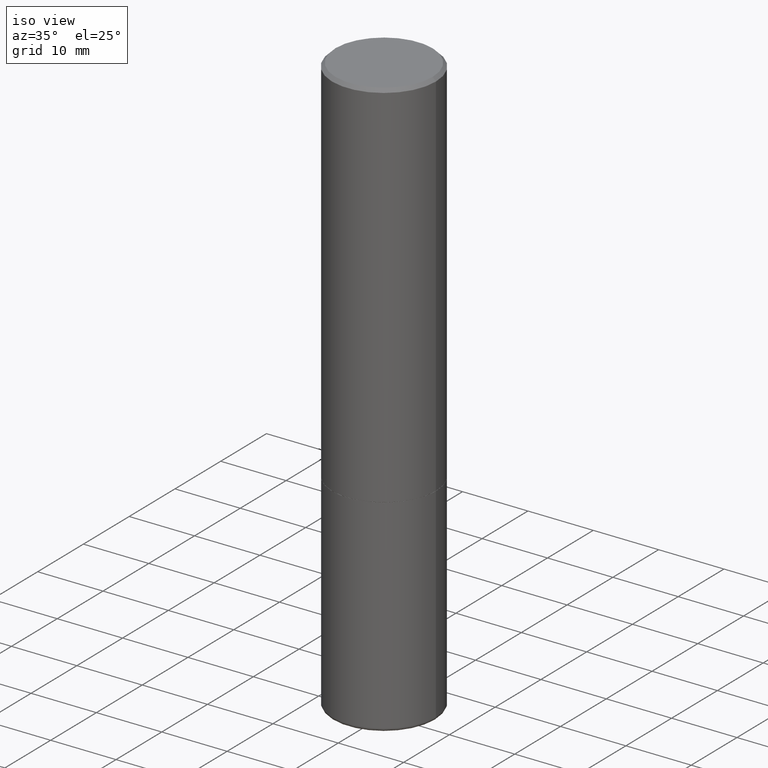
[diagram: clean part render]
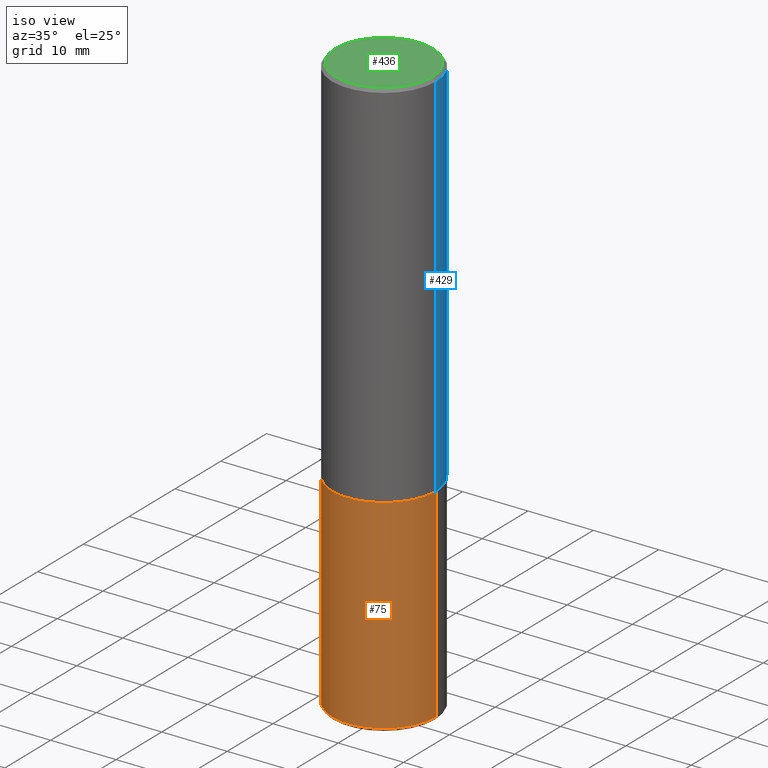
[diagram: same view with three faces highlighted in distinct colors, each labeled with its STEP entity id]
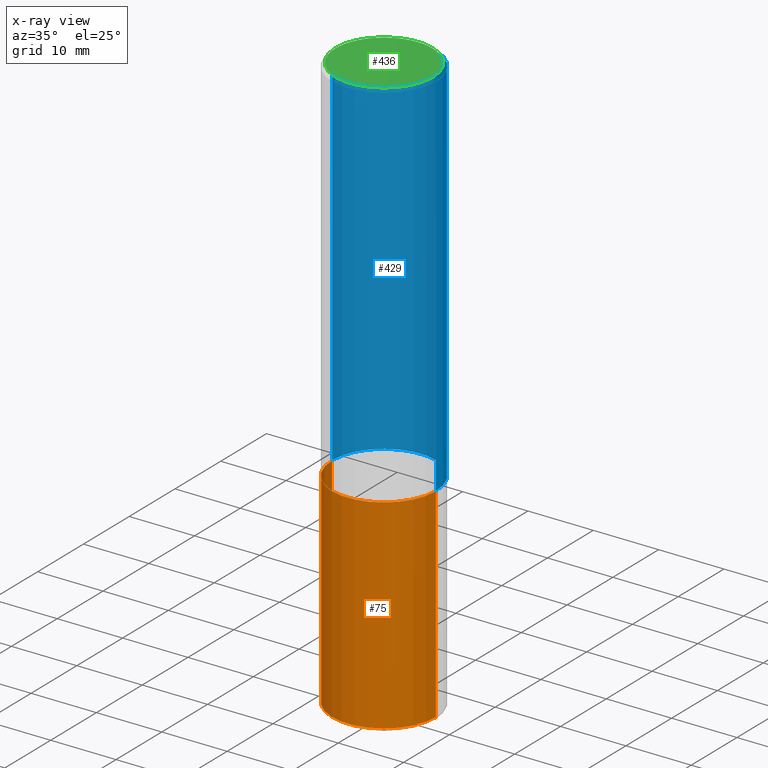
[diagram: x-ray of the same camera — body ghosted, the three highlighted faces saturated]
A machine part, iso view with three faces highlighted in distinct colors.
The next image is the same camera in x-ray (body ghosted, the three faces saturated) — at least one of them is partly hidden behind the body in this view.
Their STEP definitions:

[orange] entity #75 — the highlighted cylindrical surface (partial cylindrical patch) has radius 7.9375 mm, axis along (-0, 0, 1).
#6 = ORIENTED_EDGE ( 'NONE', *, *, #218, .T. ) ;
#8 = DIRECTION ( 'NONE',  ( 1.000000000000000000, -6.982962677686266711E-15, 4.876176775795935232E-29 ) ) ;
#18 = EDGE_CURVE ( 'NONE', #424, #171, #234, .T. ) ;
#75 = ADVANCED_FACE ( 'NONE', ( #278 ), #185, .T. ) ;
#77 = CARTESIAN_POINT ( 'NONE',  ( -0.3124999999999998890, 2.220446049250312292E-15, -1.537167215704657391E-29 ) ) ;
#101 = EDGE_CURVE ( 'NONE', #424, #416, #249, .T. ) ;
#112 = DIRECTION ( 'NONE',  ( -2.445468806185136877E-29, 3.491481338843145188E-15, 1.000000000000000000 ) ) ;
#121 = CARTESIAN_POINT ( 'NONE',  ( 0.3125000000000000000, -1.003800884917403364E-14, -2.249999999999999556 ) ) ;
#123 = ORIENTED_EDGE ( 'NONE', *, *, #142, .F. ) ;
#142 = EDGE_CURVE ( 'NONE', #416, #358, #168, .T. ) ;
#147 = VECTOR ( 'NONE', #112, 39.37007874015748143 ) ;
#167 = ORIENTED_EDGE ( 'NONE', *, *, #18, .T. ) ;
#168 = CIRCLE ( 'NONE', #319, 0.3125000000000000000 ) ;
#171 = VERTEX_POINT ( 'NONE', #245 ) ;
#184 = DIRECTION ( 'NONE',  ( 1.000000000000000000, -6.982962677686265133E-15, 0.000000000000000000 ) ) ;
#185 = CYLINDRICAL_SURFACE ( 'NONE', #221, 0.3124999999999998890 ) ;
#203 = DIRECTION ( 'NONE',  ( -2.445468806185136597E-29, 3.491481338843145583E-15, 1.000000000000000000 ) ) ;
#218 = EDGE_CURVE ( 'NONE', #171, #358, #274, .T. ) ;
#220 = DIRECTION ( 'NONE',  ( -2.445468806185136597E-29, 3.491481338843145583E-15, 1.000000000000000000 ) ) ;
#221 = AXIS2_PLACEMENT_3D ( 'NONE', #309, #220, #8 ) ;
#234 = CIRCLE ( 'NONE', #302, 0.3124999999999997224 ) ;
#239 = CARTESIAN_POINT ( 'NONE',  ( 8.510298474124427942E-29, -1.215045075825074504E-14, -3.480027409304908392 ) ) ;
#245 = CARTESIAN_POINT ( 'NONE',  ( 0.3124999999999997224, -1.433262659502770023E-14, -3.480027409304908392 ) ) ;
#249 = LINE ( 'NONE', #77, #341 ) ;
#252 = DIRECTION ( 'NONE',  ( -2.445468806185136877E-29, 3.491481338843145188E-15, 1.000000000000000000 ) ) ;
#274 = LINE ( 'NONE', #404, #147 ) ;
#278 = FACE_OUTER_BOUND ( 'NONE', #439, .T. ) ;
#302 = AXIS2_PLACEMENT_3D ( 'NONE', #239, #203, #327 ) ;
#307 = DIRECTION ( 'NONE',  ( -2.445468806185136597E-29, 3.491481338843145583E-15, 1.000000000000000000 ) ) ;
#309 = CARTESIAN_POINT ( 'NONE',  ( 0.000000000000000000, 0.000000000000000000, 0.000000000000000000 ) ) ;
#319 = AXIS2_PLACEMENT_3D ( 'NONE', #403, #307, #184 ) ;
#326 = CARTESIAN_POINT ( 'NONE',  ( -0.3125000000000000000, -7.782695836073597873E-15, -2.249999999999999556 ) ) ;
#327 = DIRECTION ( 'NONE',  ( 1.000000000000000000, -6.982962677686269077E-15, 0.000000000000000000 ) ) ;
#341 = VECTOR ( 'NONE', #252, 39.37007874015748143 ) ;
#357 = CARTESIAN_POINT ( 'NONE',  ( -0.3124999999999997224, -7.782695836073599450E-15, -3.480027409304908392 ) ) ;
#358 = VERTEX_POINT ( 'NONE', #121 ) ;
#403 = CARTESIAN_POINT ( 'NONE',  ( 5.502304813916556222E-29, -7.855833012397075293E-15, -2.249999999999999556 ) ) ;
#404 = CARTESIAN_POINT ( 'NONE',  ( 0.3124999999999998890, -2.182175836776957558E-15, 1.523805242436229235E-29 ) ) ;
#416 = VERTEX_POINT ( 'NONE', #326 ) ;
#424 = VERTEX_POINT ( 'NONE', #357 ) ;
#435 = ORIENTED_EDGE ( 'NONE', *, *, #101, .F. ) ;
#439 = EDGE_LOOP ( 'NONE', ( #435, #167, #6, #123 ) ) ;

[blue] entity #429 — the highlighted cylindrical surface (partial cylindrical patch) has radius 7.9375 mm, axis along (-0, 0, 1).
#7 = CARTESIAN_POINT ( 'NONE',  ( -0.3124999999999998890, 2.220446049250312292E-15, -1.537167215704657391E-29 ) ) ;
#14 = VECTOR ( 'NONE', #305, 39.37007874015748143 ) ;
#20 = CARTESIAN_POINT ( 'NONE',  ( 5.499859345110370619E-29, -7.852341531058232286E-15, -2.248999999999999222 ) ) ;
#23 = CIRCLE ( 'NONE', #31, 0.3124999999999998335 ) ;
#28 = VERTEX_POINT ( 'NONE', #143 ) ;
#31 = AXIS2_PLACEMENT_3D ( 'NONE', #47, #79, #339 ) ;
#41 = EDGE_CURVE ( 'NONE', #355, #28, #23, .T. ) ;
#47 = CARTESIAN_POINT ( 'NONE',  ( 4.890937612370276662E-31, -6.982962677686296539E-17, -0.02000000000000001776 ) ) ;
#57 = DIRECTION ( 'NONE',  ( -2.445468806185136597E-29, 3.491481338843145583E-15, 1.000000000000000000 ) ) ;
#66 = DIRECTION ( 'NONE',  ( 1.000000000000000000, -6.982962677686266711E-15, 4.876176775795935232E-29 ) ) ;
#79 = DIRECTION ( 'NONE',  ( -2.445468806185136597E-29, 3.491481338843145583E-15, 1.000000000000000000 ) ) ;
#87 = CIRCLE ( 'NONE', #230, 0.3125000000000000000 ) ;
#93 = VERTEX_POINT ( 'NONE', #337 ) ;
#134 = ORIENTED_EDGE ( 'NONE', *, *, #375, .T. ) ;
#143 = CARTESIAN_POINT ( 'NONE',  ( -0.3124999999999998335, 2.112346210000093866E-15, -0.02000000000000001776 ) ) ;
#148 = CARTESIAN_POINT ( 'NONE',  ( 0.3124999999999998890, -2.182175836776957558E-15, 1.523805242436229235E-29 ) ) ;
#157 = DIRECTION ( 'NONE',  ( 1.000000000000000000, -6.982962677686269077E-15, 0.000000000000000000 ) ) ;
#161 = CARTESIAN_POINT ( 'NONE',  ( 0.3124999999999998335, -2.213735251080465334E-15, -0.02000000000000001776 ) ) ;
#164 = ORIENTED_EDGE ( 'NONE', *, *, #186, .T. ) ;
#176 = VECTOR ( 'NONE', #407, 39.37007874015748143 ) ;
#180 = LINE ( 'NONE', #7, #14 ) ;
#186 = EDGE_CURVE ( 'NONE', #397, #28, #180, .T. ) ;
#202 = ORIENTED_EDGE ( 'NONE', *, *, #41, .F. ) ;
#223 = EDGE_CURVE ( 'NONE', #93, #355, #248, .T. ) ;
#230 = AXIS2_PLACEMENT_3D ( 'NONE', #20, #57, #157 ) ;
#233 = CYLINDRICAL_SURFACE ( 'NONE', #419, 0.3124999999999998890 ) ;
#235 = ORIENTED_EDGE ( 'NONE', *, *, #223, .F. ) ;
#248 = LINE ( 'NONE', #148, #176 ) ;
#305 = DIRECTION ( 'NONE',  ( -2.445468806185136877E-29, 3.491481338843145188E-15, 1.000000000000000000 ) ) ;
#320 = CARTESIAN_POINT ( 'NONE',  ( -0.3125000000000000000, -1.740639529667232739E-15, -2.248999999999999222 ) ) ;
#328 = FACE_OUTER_BOUND ( 'NONE', #393, .T. ) ;
#331 = CARTESIAN_POINT ( 'NONE',  ( 0.000000000000000000, 0.000000000000000000, 0.000000000000000000 ) ) ;
#337 = CARTESIAN_POINT ( 'NONE',  ( 0.3125000000000000000, -1.003451736783519063E-14, -2.248999999999999222 ) ) ;
#339 = DIRECTION ( 'NONE',  ( 1.000000000000000000, -6.982962677686266711E-15, 0.000000000000000000 ) ) ;
#355 = VERTEX_POINT ( 'NONE', #161 ) ;
#363 = DIRECTION ( 'NONE',  ( -2.445468806185136597E-29, 3.491481338843145583E-15, 1.000000000000000000 ) ) ;
#375 = EDGE_CURVE ( 'NONE', #93, #397, #87, .T. ) ;
#393 = EDGE_LOOP ( 'NONE', ( #134, #164, #202, #235 ) ) ;
#397 = VERTEX_POINT ( 'NONE', #320 ) ;
#407 = DIRECTION ( 'NONE',  ( -2.445468806185136877E-29, 3.491481338843145188E-15, 1.000000000000000000 ) ) ;
#419 = AXIS2_PLACEMENT_3D ( 'NONE', #331, #363, #66 ) ;
#429 = ADVANCED_FACE ( 'NONE', ( #328 ), #233, .T. ) ;

[green] entity #436 — the highlighted planar face has unit normal (0, -0, -1).
#2 = EDGE_CURVE ( 'NONE', #30, #95, #122, .T. ) ;
#30 = VERTEX_POINT ( 'NONE', #410 ) ;
#53 = DIRECTION ( 'NONE',  ( -2.445468806185136597E-29, 3.491481338843145583E-15, 1.000000000000000000 ) ) ;
#95 = VERTEX_POINT ( 'NONE', #376 ) ;
#111 = CIRCLE ( 'NONE', #296, 0.2924999999999998157 ) ;
#122 = CIRCLE ( 'NONE', #255, 0.2924999999999998157 ) ;
#136 = ORIENTED_EDGE ( 'NONE', *, *, #359, .T. ) ;
#140 = FACE_OUTER_BOUND ( 'NONE', #282, .T. ) ;
#159 = ORIENTED_EDGE ( 'NONE', *, *, #2, .T. ) ;
#207 = AXIS2_PLACEMENT_3D ( 'NONE', #238, #334, #390 ) ;
#209 = CARTESIAN_POINT ( 'NONE',  ( -1.043851414335219820E-46, 1.490343170380447200E-32, 4.268512490100411279E-18 ) ) ;
#237 = DIRECTION ( 'NONE',  ( -2.445468806185136597E-29, 3.491481338843145583E-15, 1.000000000000000000 ) ) ;
#238 = CARTESIAN_POINT ( 'NONE',  ( 2.042516583223231356E-15, 0.2924999999999998157, -1.019124035366569212E-15 ) ) ;
#254 = DIRECTION ( 'NONE',  ( 1.000000000000000000, -6.982962677686266711E-15, 4.876067333457692840E-29 ) ) ;
#255 = AXIS2_PLACEMENT_3D ( 'NONE', #209, #237, #270 ) ;
#270 = DIRECTION ( 'NONE',  ( 1.000000000000000000, -6.982962677686266711E-15, 4.876067333457692840E-29 ) ) ;
#282 = EDGE_LOOP ( 'NONE', ( #159, #136 ) ) ;
#296 = AXIS2_PLACEMENT_3D ( 'NONE', #386, #53, #254 ) ;
#334 = DIRECTION ( 'NONE',  ( 2.438088387897960049E-29, -3.491481338843145188E-15, -1.000000000000000000 ) ) ;
#359 = EDGE_CURVE ( 'NONE', #95, #30, #111, .T. ) ;
#360 = PLANE ( 'NONE',  #207 ) ;
#376 = CARTESIAN_POINT ( 'NONE',  ( 0.2924999999999998157, -2.110215457714318748E-15, 4.268512490114932791E-18 ) ) ;
#386 = CARTESIAN_POINT ( 'NONE',  ( -1.043851414335219820E-46, 1.490343170380447200E-32, 4.268512490100411279E-18 ) ) ;
#390 = DIRECTION ( 'NONE',  ( -1.000000000000000000, 6.982962677686265922E-15, -4.876176775795935793E-29 ) ) ;
#410 = CARTESIAN_POINT ( 'NONE',  ( -0.2924999999999998157, 2.077431396611662611E-15, 4.268512490086005323E-18 ) ) ;
#436 = ADVANCED_FACE ( 'NONE', ( #140 ), #360, .F. ) ;